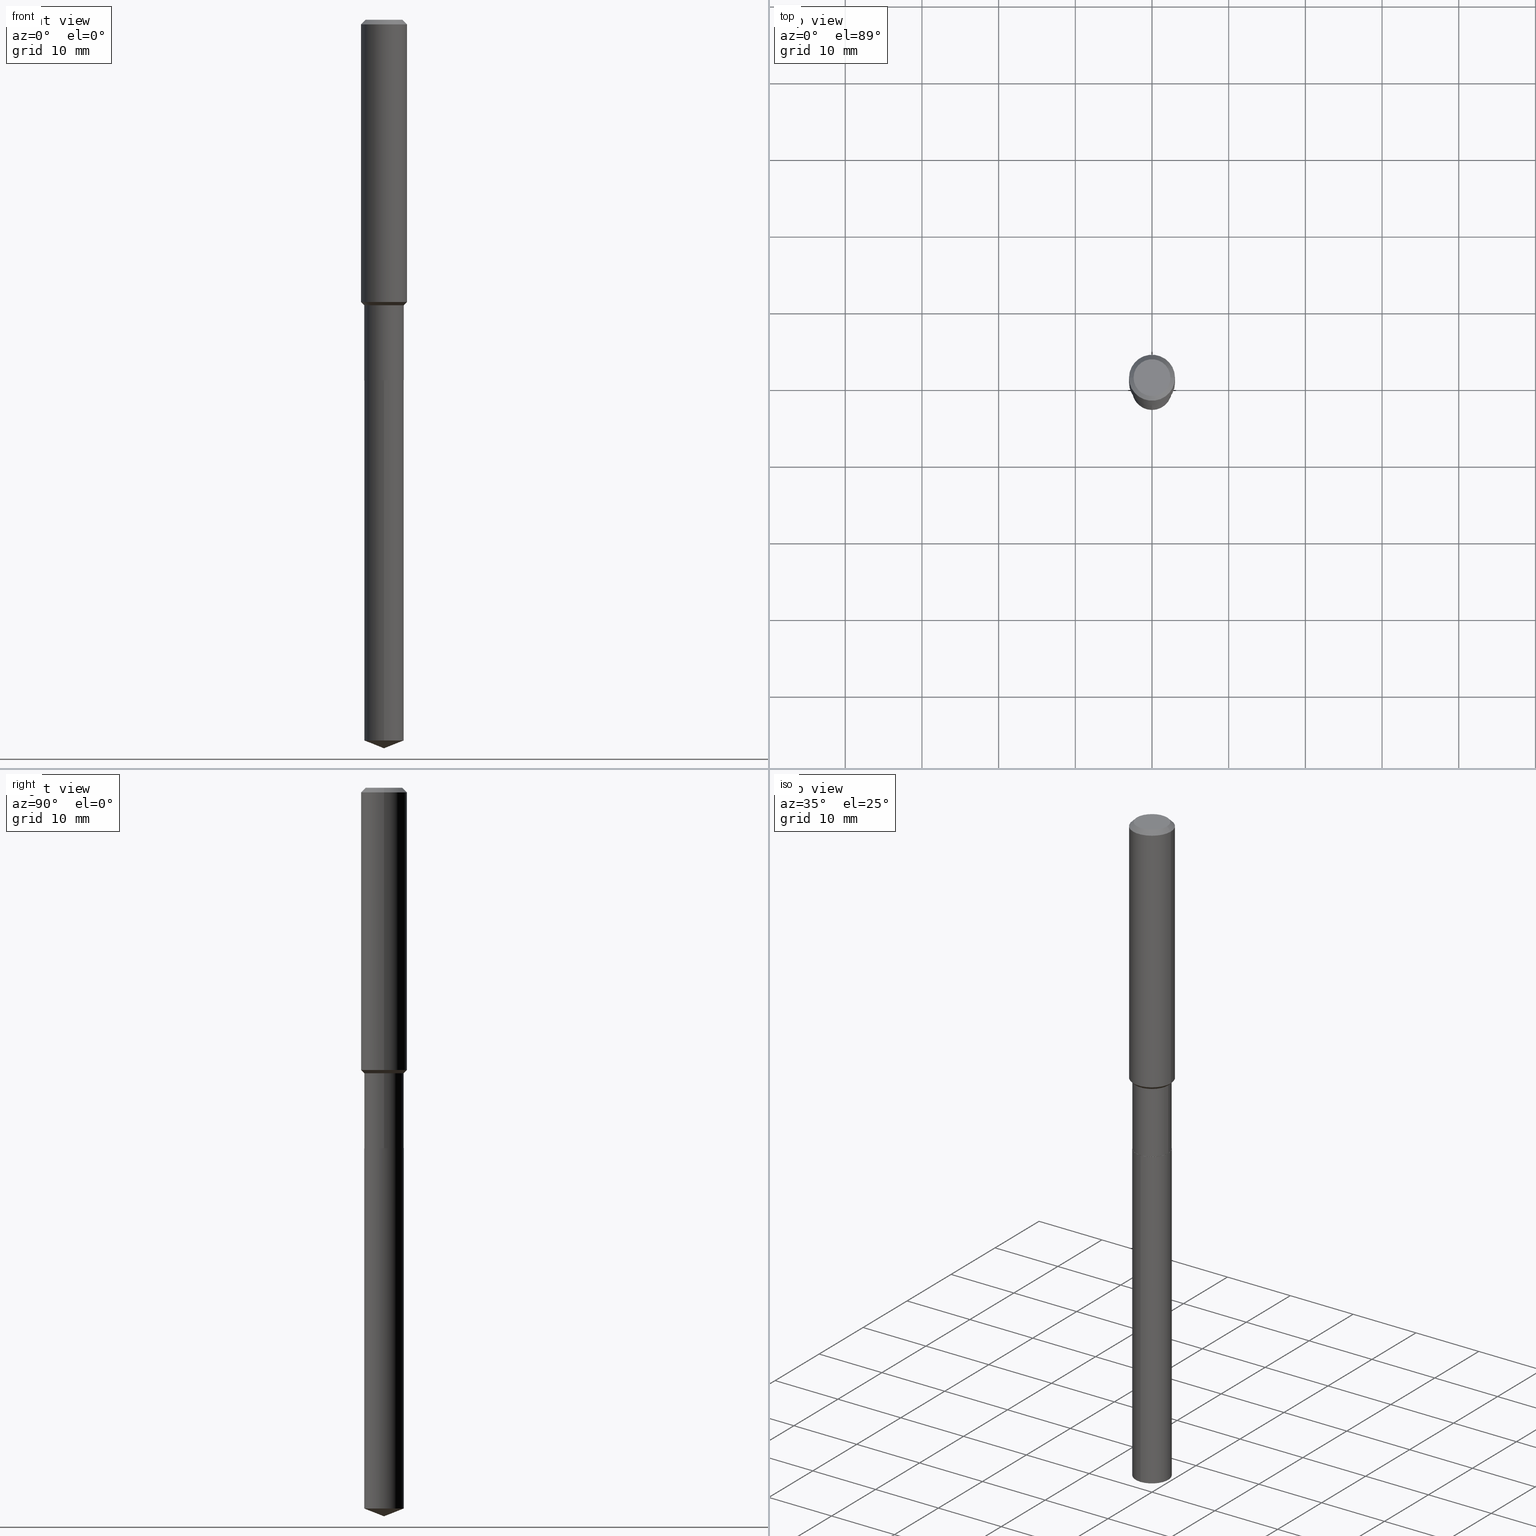
[diagram: canonical four-view strip — front | top / right | iso, engineering-drawing reading convention]
A machine part, canonical four-view strip (front | top / right | iso — engineering-drawing reading convention). The complete STEP part file that produces these views, byte-faithful:
ISO-10303-21;
HEADER;
FILE_DESCRIPTION (( 'STEP AP203' ),
    '1' );
FILE_NAME ('56479.STEP',
    '2024-04-24T18:12:28',
    ( '' ),
    ( '' ),
    'SwSTEP 2.0',
    'SolidWorks 2023',
    '' );
FILE_SCHEMA (( 'CONFIG_CONTROL_DESIGN' ));
ENDSEC;

DATA;
#1 = DIRECTION ( 'NONE',  ( -2.445468806185136597E-29, 3.491481338843145583E-15, 1.000000000000000000 ) ) ;
#2 = ORIENTED_EDGE ( 'NONE', *, *, #412, .F. ) ;
#3 = LINE ( 'NONE', #83, #339 ) ;
#4 = EDGE_LOOP ( 'NONE', ( #161, #128 ) ) ;
#5 = CONICAL_SURFACE ( 'NONE', #86, 0.1010500000000000009, 0.7853981633972606513 ) ;
#6 = LOCAL_TIME ( 14, 12, 28.00000000000000000, #180 ) ;
#7 = CARTESIAN_POINT ( 'NONE',  ( -0.1010500000000000009, -5.739984407735665328E-15, -1.850400000000000489 ) ) ;
#8 = ORIENTED_EDGE ( 'NONE', *, *, #420, .T. ) ;
#9 = AXIS2_PLACEMENT_3D ( 'NONE', #483, #145, #448 ) ;
#10 = AXIS2_PLACEMENT_3D ( 'NONE', #221, #374, #31 ) ;
#11 = CARTESIAN_POINT ( 'NONE',  ( -8.712656782495351602E-28, 1.244084879594921734E-13, 35.62987874015747991 ) ) ;
#12 = ADVANCED_FACE ( 'NONE', ( #168 ), #27, .F. ) ;
#13 = ORIENTED_EDGE ( 'NONE', *, *, #198, .T. ) ;
#14 = CONICAL_SURFACE ( 'NONE', #46, 0.1010500000000000009, 0.7853981633972606513 ) ;
#15 = DIRECTION ( 'NONE',  ( 1.000000000000000000, -6.982962677686269077E-15, 0.000000000000000000 ) ) ;
#16 = EDGE_LOOP ( 'NONE', ( #315, #117, #436, #88 ) ) ;
#17 = AXIS2_PLACEMENT_3D ( 'NONE', #149, #109, #264 ) ;
#18 = LOCAL_TIME ( 14, 12, 28.00000000000000000, #215 ) ;
#19 = LINE ( 'NONE', #127, #143 ) ;
#20 = FACE_OUTER_BOUND ( 'NONE', #125, .T. ) ;
#21 = CC_DESIGN_PERSON_AND_ORGANIZATION_ASSIGNMENT ( #64, #146, ( #411 ) ) ;
#22 = DIRECTION ( 'NONE',  ( -6.982962677686266711E-15, -1.000000000000000000, 5.380301316916323039E-15 ) ) ;
#23 = PLANE ( 'NONE',  #403 ) ;
#24 = VERTEX_POINT ( 'NONE', #255 ) ;
#25 = VECTOR ( 'NONE', #353, 39.37007874015748143 ) ;
#26 = DIRECTION ( 'NONE',  ( -2.445330354646487299E-29, 3.491679609326663871E-15, 1.000000000000000000 ) ) ;
#27 = PLANE ( 'NONE',  #66 ) ;
#28 = DIRECTION ( 'NONE',  ( -2.445330354646487299E-29, 3.491679609326663871E-15, 1.000000000000000000 ) ) ;
#29 = DIRECTION ( 'NONE',  ( -2.445468806185136597E-29, 3.491481338843145583E-15, 1.000000000000000000 ) ) ;
#30 = PERSON_AND_ORGANIZATION_ROLE ( 'creator' ) ;
#31 = DIRECTION ( 'NONE',  ( 1.000000000000000000, -6.982962677686266711E-15, 4.876176775795936353E-29 ) ) ;
#32 = LINE ( 'NONE', #416, #479 ) ;
#33 = EDGE_CURVE ( 'NONE', #275, #330, #365, .T. ) ;
#34 = DIRECTION ( 'NONE',  ( -2.445468806185136597E-29, 3.491481338843145583E-15, 1.000000000000000000 ) ) ;
#35 = CARTESIAN_POINT ( 'NONE',  ( 3.584079082344936633E-29, -5.117115050208514787E-15, -1.465600000000000236 ) ) ;
#36 = CARTESIAN_POINT ( 'NONE',  ( 0.1015499999999999597, -5.826234910127555569E-15, -1.465600000000000236 ) ) ;
#37 = CIRCLE ( 'NONE', #115, 0.1010500000000000009 ) ;
#38 = FACE_OUTER_BOUND ( 'NONE', #102, .T. ) ;
#39 = VERTEX_POINT ( 'NONE', #216 ) ;
#40 = ADVANCED_FACE ( 'NONE', ( #20 ), #438, .T. ) ;
#41 = DATE_AND_TIME ( #337, #267 ) ;
#42 = DIRECTION ( 'NONE',  ( 1.000000000000000000, -6.982962677686266711E-15, 0.000000000000000000 ) ) ;
#43 = ORIENTED_EDGE ( 'NONE', *, *, #376, .T. ) ;
#44 = PERSON_AND_ORGANIZATION ( #405, #156 ) ;
#45 = ADVANCED_FACE ( 'NONE', ( #371 ), #402, .T. ) ;
#46 = AXIS2_PLACEMENT_3D ( 'NONE', #262, #419, #74 ) ;
#47 = DIRECTION ( 'NONE',  ( -2.445330354646487299E-29, 3.491679609326663871E-15, 1.000000000000000000 ) ) ;
#48 = ORIENTED_EDGE ( 'NONE', *, *, #110, .F. ) ;
#49 = EDGE_CURVE ( 'NONE', #439, #81, #54, .T. ) ;
#50 = DIRECTION ( 'NONE',  ( 6.982962677686265922E-15, 1.000000000000000000, -3.491679609326664266E-15 ) ) ;
#51 = VERTEX_POINT ( 'NONE', #211 ) ;
#52 = CARTESIAN_POINT ( 'NONE',  ( 4.525095478964977394E-29, -6.460637069395357576E-15, -1.850400000000000267 ) ) ;
#53 = PERSON_AND_ORGANIZATION ( #405, #156 ) ;
#54 = LINE ( 'NONE', #208, #384 ) ;
#55 = ADVANCED_FACE ( 'NONE', ( #364 ), #23, .F. ) ;
#56 =( GEOMETRIC_REPRESENTATION_CONTEXT ( 3 ) GLOBAL_UNCERTAINTY_ASSIGNED_CONTEXT ( ( #387 ) ) GLOBAL_UNIT_ASSIGNED_CONTEXT ( ( #254, #435, #326 ) ) REPRESENTATION_CONTEXT ( 'NONE', 'WORKASPACE' ) );
#57 = CARTESIAN_POINT ( 'NONE',  ( -0.1015499999999999597, -4.395558902044134419E-15, -1.465600000000000236 ) ) ;
#58 = ORIENTED_EDGE ( 'NONE', *, *, #467, .T. ) ;
#59 = DIRECTION ( 'NONE',  ( 1.000000000000000000, -6.982962677686267499E-15, 0.000000000000000000 ) ) ;
#60 = CARTESIAN_POINT ( 'NONE',  ( 3.543606573602572639E-29, -5.059331034050661047E-15, -1.449050000000000171 ) ) ;
#61 = ORIENTED_EDGE ( 'NONE', *, *, #82, .F. ) ;
#62 = APPROVAL ( #189, 'UNSPECIFIED' ) ;
#63 = DIRECTION ( 'NONE',  ( 1.000000000000000000, -6.982962677686266711E-15, 0.000000000000000000 ) ) ;
#64 = PERSON_AND_ORGANIZATION ( #405, #156 ) ;
#65 = LINE ( 'NONE', #72, #414 ) ;
#66 = AXIS2_PLACEMENT_3D ( 'NONE', #289, #443, #100 ) ;
#67 = VECTOR ( 'NONE', #183, 39.37007874015748143 ) ;
#68 = APPROVAL_STATUS ( 'not_yet_approved' ) ;
#69 = CARTESIAN_POINT ( 'NONE',  ( -7.091198599189951267E-16, -0.1015500000000064545, -1.850400000000000045 ) ) ;
#70 = VECTOR ( 'NONE', #163, 39.37007874015748143 ) ;
#71 = CYLINDRICAL_SURFACE ( 'NONE', #10, 0.1181000000000000799 ) ;
#72 = CARTESIAN_POINT ( 'NONE',  ( 0.1181000000000000799, -8.246878922347486570E-16, 5.758764772215004644E-30 ) ) ;
#73 = EDGE_CURVE ( 'NONE', #191, #427, #217, .T. ) ;
#74 = DIRECTION ( 'NONE',  ( 1.000000000000000000, -6.982962677686269077E-15, 0.000000000000000000 ) ) ;
#75 = CARTESIAN_POINT ( 'NONE',  ( 0.000000000000000000, 0.000000000000000000, 0.000000000000000000 ) ) ;
#76 = AXIS2_PLACEMENT_3D ( 'NONE', #265, #313, #50 ) ;
#77 = ADVANCED_FACE ( 'NONE', ( #338 ), #71, .T. ) ;
#78 = LINE ( 'NONE', #158, #126 ) ;
#79 = ORIENTED_EDGE ( 'NONE', *, *, #333, .F. ) ;
#80 = DIRECTION ( 'NONE',  ( -2.445468806185136597E-29, 3.491481338843145583E-15, 1.000000000000000000 ) ) ;
#81 = VERTEX_POINT ( 'NONE', #178 ) ;
#82 = EDGE_CURVE ( 'NONE', #463, #439, #341, .T. ) ;
#83 = CARTESIAN_POINT ( 'NONE',  ( 9.146541466883561423E-29, -1.305884631539818411E-14, -3.740200000000000191 ) ) ;
#84 = ADVANCED_BREP_SHAPE_REPRESENTATION ( '56479', ( #451, #113, #309 ), #56 ) ;
#85 = ORIENTED_EDGE ( 'NONE', *, *, #162, .F. ) ;
#86 = AXIS2_PLACEMENT_3D ( 'NONE', #464, #271, #229 ) ;
#87 = DIRECTION ( 'NONE',  ( 1.000000000000000000, -6.982962677686266711E-15, 4.876176775795935793E-29 ) ) ;
#88 = ORIENTED_EDGE ( 'NONE', *, *, #426, .F. ) ;
#89 = AXIS2_PLACEMENT_3D ( 'NONE', #401, #29, #177 ) ;
#90 = AXIS2_PLACEMENT_3D ( 'NONE', #301, #413, #299 ) ;
#91 = APPLICATION_PROTOCOL_DEFINITION ( 'international standard', 'config_control_design', 1994, #238 ) ;
#92 = ORIENTED_EDGE ( 'NONE', *, *, #198, .F. ) ;
#93 = DIRECTION ( 'NONE',  ( -2.445330354646487579E-29, 3.491679609326664266E-15, 1.000000000000000000 ) ) ;
#94 = DIRECTION ( 'NONE',  ( -2.445330354646487299E-29, 3.491679609326663871E-15, 1.000000000000000000 ) ) ;
#95 = DIRECTION ( 'NONE',  ( -2.438088387897960049E-29, 3.491481338843145188E-15, 1.000000000000000000 ) ) ;
#96 = PERSON_AND_ORGANIZATION ( #405, #156 ) ;
#97 = ORIENTED_EDGE ( 'NONE', *, *, #219, .T. ) ;
#98 = EDGE_CURVE ( 'NONE', #439, #463, #288, .T. ) ;
#99 = CARTESIAN_POINT ( 'NONE',  ( 9.048463634945760829E-29, -1.291954039331821326E-14, -3.700198391201303227 ) ) ;
#100 = DIRECTION ( 'NONE',  ( -1.000000000000000000, 6.982962677686265922E-15, -4.876176775795935793E-29 ) ) ;
#101 = CONICAL_SURFACE ( 'NONE', #381, 0.1015499999999999597, 0.7853981633974509435 ) ;
#102 = EDGE_LOOP ( 'NONE', ( #369, #43, #390 ) ) ;
#103 = CARTESIAN_POINT ( 'NONE',  ( -0.1015499999999999597, -5.066447041302844667E-15, -1.465600000000000236 ) ) ;
#104 = CARTESIAN_POINT ( 'NONE',  ( -0.1181000000000000799, 8.391509709326788873E-16, -5.809262341591047988E-30 ) ) ;
#105 = PRODUCT_DEFINITION_SHAPE ( 'NONE', 'NONE',  #404 ) ;
#106 = AXIS2_PLACEMENT_3D ( 'NONE', #35, #34, #343 ) ;
#107 = LOCAL_TIME ( 14, 12, 28.00000000000000000, #446 ) ;
#108 = DIRECTION ( 'NONE',  ( -1.000000000000000000, 6.982962677686266711E-15, 0.000000000000000000 ) ) ;
#109 = DIRECTION ( 'NONE',  ( -2.445330354646487299E-29, 3.491679609326663871E-15, 1.000000000000000000 ) ) ;
#110 = EDGE_CURVE ( 'NONE', #191, #330, #65, .T. ) ;
#111 = DIRECTION ( 'NONE',  ( -6.982962677686266711E-15, -1.000000000000000000, 2.690150658458161520E-15 ) ) ;
#112 = DESIGN_CONTEXT ( 'detailed design', #263, 'design' ) ;
#113 = MANIFOLD_SOLID_BREP ( 'Body-Move/Copy2[2]', #272 ) ;
#114 = CARTESIAN_POINT ( 'NONE',  ( 0.1010500000000000009, -7.166265447975555351E-15, -1.850400000000000489 ) ) ;
#115 = AXIS2_PLACEMENT_3D ( 'NONE', #268, #311, #15 ) ;
#116 = CIRCLE ( 'NONE', #206, 0.1015500000000000014 ) ;
#117 = ORIENTED_EDGE ( 'NONE', *, *, #380, .T. ) ;
#118 = COORDINATED_UNIVERSAL_TIME_OFFSET ( 5, 0, .BEHIND. ) ;
#119 = CYLINDRICAL_SURFACE ( 'NONE', #196, 0.1015499999999999736 ) ;
#120 = EDGE_CURVE ( 'NONE', #269, #463, #32, .T. ) ;
#121 = ORIENTED_EDGE ( 'NONE', *, *, #73, .F. ) ;
#122 = FACE_OUTER_BOUND ( 'NONE', #212, .T. ) ;
#123 = VERTEX_POINT ( 'NONE', #257 ) ;
#124 = DIRECTION ( 'NONE',  ( -6.982962677686265133E-15, -1.000000000000000000, 3.498627837350004222E-15 ) ) ;
#125 = EDGE_LOOP ( 'NONE', ( #139, #13, #307, #253 ) ) ;
#126 = VECTOR ( 'NONE', #462, 39.37007874015748143 ) ;
#127 = CARTESIAN_POINT ( 'NONE',  ( 7.215561481644269108E-16, 0.1015499999999935482, -1.850400000000000489 ) ) ;
#128 = ORIENTED_EDGE ( 'NONE', *, *, #138, .F. ) ;
#129 = CIRCLE ( 'NONE', #90, 0.1010500000000000009 ) ;
#130 = DIRECTION ( 'NONE',  ( -2.445468806185136597E-29, 3.491481338843145583E-15, 1.000000000000000000 ) ) ;
#131 = ORIENTED_EDGE ( 'NONE', *, *, #73, .T. ) ;
#132 = CARTESIAN_POINT ( 'NONE',  ( 6.603013411620882309E-46, -9.427353171913646324E-32, -2.700101262760083747E-17 ) ) ;
#133 = ORIENTED_EDGE ( 'NONE', *, *, #203, .T. ) ;
#134 = CIRCLE ( 'NONE', #186, 0.1015499999999999597 ) ;
#135 = CC_DESIGN_APPROVAL ( #466, ( #361 ) ) ;
#136 = DIRECTION ( 'NONE',  ( 1.000000000000000000, 0.000000000000000000, 0.000000000000000000 ) ) ;
#137 = EDGE_LOOP ( 'NONE', ( #286, #327, #470, #431 ) ) ;
#138 = EDGE_CURVE ( 'NONE', #269, #358, #129, .T. ) ;
#139 = ORIENTED_EDGE ( 'NONE', *, *, #485, .F. ) ;
#140 = SHAPE_DEFINITION_REPRESENTATION ( #105, #84 ) ;
#141 = ORIENTED_EDGE ( 'NONE', *, *, #453, .T. ) ;
#142 = ADVANCED_FACE ( 'NONE', ( #421 ), #415, .T. ) ;
#143 = VECTOR ( 'NONE', #93, 39.37007874015748143 ) ;
#144 = DATE_AND_TIME ( #305, #107 ) ;
#145 = DIRECTION ( 'NONE',  ( -2.445468806185136597E-29, 3.491481338843145583E-15, 1.000000000000000000 ) ) ;
#146 = PERSON_AND_ORGANIZATION_ROLE ( 'design_supplier' ) ;
#147 = DIRECTION ( 'NONE',  ( 1.000000000000000000, -6.982962677686267499E-15, 0.000000000000000000 ) ) ;
#148 = DIRECTION ( 'NONE',  ( -2.445468806185136877E-29, 3.491481338843145188E-15, 1.000000000000000000 ) ) ;
#149 = CARTESIAN_POINT ( 'NONE',  ( 4.525095478964977394E-29, -6.460637069395357576E-15, -1.850400000000000267 ) ) ;
#150 = CC_DESIGN_PERSON_AND_ORGANIZATION_ASSIGNMENT ( #96, #252, ( #182 ) ) ;
#151 = CARTESIAN_POINT ( 'NONE',  ( 5.776197320209327532E-31, -8.246878922347559293E-17, -0.02362000000000014088 ) ) ;
#152 = CALENDAR_DATE ( 2024, 24, 4 ) ;
#153 = CARTESIAN_POINT ( 'NONE',  ( -0.1180999999999999966, -1.731748940704388872E-15, -0.02362000000000014088 ) ) ;
#154 = EDGE_LOOP ( 'NONE', ( #157, #240 ) ) ;
#155 = CARTESIAN_POINT ( 'NONE',  ( 3.584079082344936633E-29, -5.117115050208514787E-15, -1.465600000000000236 ) ) ;
#156 = ORGANIZATION ( 'UNSPECIFIED', 'UNSPECIFIED', '' ) ;
#157 = ORIENTED_EDGE ( 'NONE', *, *, #473, .T. ) ;
#158 = CARTESIAN_POINT ( 'NONE',  ( -0.1180999999999999966, 7.422191030112725094E-16, -0.02362000000000014088 ) ) ;
#159 = ORIENTED_EDGE ( 'NONE', *, *, #98, .F. ) ;
#160 = FACE_OUTER_BOUND ( 'NONE', #137, .T. ) ;
#161 = ORIENTED_EDGE ( 'NONE', *, *, #420, .F. ) ;
#162 = EDGE_CURVE ( 'NONE', #324, #24, #372, .T. ) ;
#163 = DIRECTION ( 'NONE',  ( -2.445468806185136877E-29, 3.491481338843145188E-15, 1.000000000000000000 ) ) ;
#164 = ORIENTED_EDGE ( 'NONE', *, *, #33, .F. ) ;
#165 = VECTOR ( 'NONE', #471, 39.37007874015748143 ) ;
#166 = PERSON_AND_ORGANIZATION ( #405, #156 ) ;
#167 = CARTESIAN_POINT ( 'NONE',  ( 4.525095478964977394E-29, -6.460637069395357576E-15, -1.850400000000000267 ) ) ;
#168 = FACE_OUTER_BOUND ( 'NONE', #154, .T. ) ;
#169 = ADVANCED_FACE ( 'NONE', ( #454 ), #14, .T. ) ;
#170 = DIRECTION ( 'NONE',  ( 0.000000000000000000, 0.000000000000000000, 1.000000000000000000 ) ) ;
#171 = VERTEX_POINT ( 'NONE', #103 ) ;
#172 = AXIS2_PLACEMENT_3D ( 'NONE', #11, #47, #124 ) ;
#173 = DIRECTION ( 'NONE',  ( 1.000000000000000000, -6.982962677686267499E-15, 4.875432709231658792E-29 ) ) ;
#174 = ORIENTED_EDGE ( 'NONE', *, *, #236, .F. ) ;
#175 = CLOSED_SHELL ( 'NONE', ( #230, #378, #447, #40, #352 ) ) ;
#176 = DATE_AND_TIME ( #370, #18 ) ;
#177 = DIRECTION ( 'NONE',  ( 1.000000000000000000, -6.982962677686266711E-15, 4.876176775795936353E-29 ) ) ;
#178 = CARTESIAN_POINT ( 'NONE',  ( 0.1015499999999999597, -5.826234910127555569E-15, -1.465600000000000236 ) ) ;
#179 = CIRCLE ( 'NONE', #300, 0.09447999999999998066 ) ;
#180 = COORDINATED_UNIVERSAL_TIME_OFFSET ( 5, 0, .BEHIND. ) ;
#181 = DIRECTION ( 'NONE',  ( -2.445468806185136597E-29, 3.491481338843145583E-15, 1.000000000000000000 ) ) ;
#182 = PRODUCT ( '56479', '56479', '', ( #210 ) ) ;
#183 = DIRECTION ( 'NONE',  ( -2.445330354646487579E-29, 3.491679609326664266E-15, 1.000000000000000000 ) ) ;
#184 = ADVANCED_FACE ( 'NONE', ( #227 ), #213, .T. ) ;
#185 = DIRECTION ( 'NONE',  ( 2.445468806185136597E-29, -3.491481338843145583E-15, -1.000000000000000000 ) ) ;
#186 = AXIS2_PLACEMENT_3D ( 'NONE', #155, #237, #199 ) ;
#187 = CC_DESIGN_APPROVAL ( #62, ( #411 ) ) ;
#188 = DIRECTION ( 'NONE',  ( -2.445330354646487299E-29, 3.491679609326663871E-15, 1.000000000000000000 ) ) ;
#189 = APPROVAL_STATUS ( 'not_yet_approved' ) ;
#190 = CARTESIAN_POINT ( 'NONE',  ( -7.091198599189497672E-16, -0.1015500000000129216, -3.700198391201302783 ) ) ;
#191 = VERTEX_POINT ( 'NONE', #484 ) ;
#192 = PRODUCT_RELATED_PRODUCT_CATEGORY ( 'detail', '', ( #182 ) ) ;
#193 = PLANE ( 'NONE',  #76 ) ;
#194 = ORIENTED_EDGE ( 'NONE', *, *, #334, .T. ) ;
#195 = CARTESIAN_POINT ( 'NONE',  ( 0.000000000000000000, 0.000000000000000000, 0.000000000000000000 ) ) ;
#196 = AXIS2_PLACEMENT_3D ( 'NONE', #75, #389, #87 ) ;
#197 = EDGE_LOOP ( 'NONE', ( #97, #321, #121, #174 ) ) ;
#198 = EDGE_CURVE ( 'NONE', #202, #324, #391, .T. ) ;
#199 = DIRECTION ( 'NONE',  ( 1.000000000000000000, -6.982962677686267499E-15, 0.000000000000000000 ) ) ;
#200 = ORIENTED_EDGE ( 'NONE', *, *, #209, .F. ) ;
#201 = DIRECTION ( 'NONE',  ( -2.445330354646487299E-29, 3.491679609326663871E-15, 1.000000000000000000 ) ) ;
#202 = VERTEX_POINT ( 'NONE', #375 ) ;
#203 = EDGE_CURVE ( 'NONE', #427, #275, #226, .T. ) ;
#204 = DIRECTION ( 'NONE',  ( -2.445468806185136597E-29, 3.491481338843145583E-15, 1.000000000000000000 ) ) ;
#205 = EDGE_LOOP ( 'NONE', ( #350, #141, #92 ) ) ;
#206 = AXIS2_PLACEMENT_3D ( 'NONE', #99, #28, #22 ) ;
#207 = LOCAL_TIME ( 14, 12, 28.00000000000000000, #118 ) ;
#208 = CARTESIAN_POINT ( 'NONE',  ( 0.1015499999999999736, -7.091198599190401904E-16, 4.951757515820771671E-30 ) ) ;
#209 = EDGE_CURVE ( 'NONE', #51, #330, #417, .T. ) ;
#210 = MECHANICAL_CONTEXT ( 'NONE', #238, 'mechanical' ) ;
#211 = CARTESIAN_POINT ( 'NONE',  ( 0.09447999999999998066, -7.704367267948738690E-16, -2.700101262759583929E-17 ) ) ;
#212 = EDGE_LOOP ( 'NONE', ( #481, #235, #393, #281 ) ) ;
#213 = CONICAL_SURFACE ( 'NONE', #488, 0.1015499999999999597, 0.7853981633974509435 ) ;
#214 = CC_DESIGN_SECURITY_CLASSIFICATION ( #361, ( #411 ) ) ;
#215 = COORDINATED_UNIVERSAL_TIME_OFFSET ( 5, 0, .BEHIND. ) ;
#216 = CARTESIAN_POINT ( 'NONE',  ( 7.215561481644725661E-16, 0.1015499999999935482, -1.850400000000000489 ) ) ;
#217 = CIRCLE ( 'NONE', #282, 0.1181000000000001632 ) ;
#218 = CARTESIAN_POINT ( 'NONE',  ( 5.776197320209327532E-31, -8.246878922347559293E-17, -0.02362000000000014088 ) ) ;
#219 = EDGE_CURVE ( 'NONE', #81, #171, #278, .T. ) ;
#220 = APPROVAL_ROLE ( '' ) ;
#221 = CARTESIAN_POINT ( 'NONE',  ( 0.000000000000000000, 0.000000000000000000, 0.000000000000000000 ) ) ;
#222 = AXIS2_PLACEMENT_3D ( 'NONE', #151, #306, #347 ) ;
#223 = APPROVAL_PERSON_ORGANIZATION ( #166, #225, #368 ) ;
#224 = CARTESIAN_POINT ( 'NONE',  ( 0.1180999999999999966, -8.926936027602933910E-16, -0.02362000000000014088 ) ) ;
#225 = APPROVAL ( #408, 'UNSPECIFIED' ) ;
#226 = LINE ( 'NONE', #104, #452 ) ;
#227 = FACE_OUTER_BOUND ( 'NONE', #197, .T. ) ;
#228 = AXIS2_PLACEMENT_3D ( 'NONE', #132, #204, #173 ) ;
#229 = DIRECTION ( 'NONE',  ( 1.000000000000000000, -6.982962677686269077E-15, 0.000000000000000000 ) ) ;
#230 = ADVANCED_FACE ( 'NONE', ( #342 ), #487, .T. ) ;
#231 = FACE_OUTER_BOUND ( 'NONE', #348, .T. ) ;
#232 = EDGE_LOOP ( 'NONE', ( #8, #287, #159, #445 ) ) ;
#233 = DATE_TIME_ROLE ( 'creation_date' ) ;
#234 = DIRECTION ( 'NONE',  ( 1.000000000000000000, -6.982962677686266711E-15, 4.876176775795935793E-29 ) ) ;
#235 = ORIENTED_EDGE ( 'NONE', *, *, #314, .T. ) ;
#236 = EDGE_CURVE ( 'NONE', #81, #191, #379, .T. ) ;
#237 = DIRECTION ( 'NONE',  ( -2.445468806185136597E-29, 3.491481338843145583E-15, 1.000000000000000000 ) ) ;
#238 = APPLICATION_CONTEXT ( 'configuration controlled 3d designs of mechanical parts and assemblies' ) ;
#239 = VECTOR ( 'NONE', #344, 39.37007874015748143 ) ;
#240 = ORIENTED_EDGE ( 'NONE', *, *, #333, .T. ) ;
#241 = CC_DESIGN_DATE_AND_TIME_ASSIGNMENT ( #144, #270, ( #361 ) ) ;
#242 = CARTESIAN_POINT ( 'NONE',  ( 9.146024592448792110E-29, -1.305958007480358851E-14, -3.740200000000000191 ) ) ;
#243 = EDGE_LOOP ( 'NONE', ( #200, #332, #396, #245 ) ) ;
#244 = CARTESIAN_POINT ( 'NONE',  ( 3.584079082344936633E-29, -5.117115050208514787E-15, -1.465600000000000236 ) ) ;
#245 = ORIENTED_EDGE ( 'NONE', *, *, #33, .T. ) ;
#246 = CARTESIAN_POINT ( 'NONE',  ( 9.146024592448792110E-29, -1.305958007480358851E-14, -3.740200000000000191 ) ) ;
#247 = CONICAL_SURFACE ( 'NONE', #222, 0.1180999999999999966, 0.7853981633974461696 ) ;
#248 = DIRECTION ( 'NONE',  ( -6.982962677686266711E-15, -1.000000000000000000, 2.690150658458161520E-15 ) ) ;
#249 = ADVANCED_FACE ( 'NONE', ( #489 ), #247, .T. ) ;
#250 = DIRECTION ( 'NONE',  ( -6.497071151882120625E-15, -0.9304175679820246847, 0.3665012267242971356 ) ) ;
#251 = DIRECTION ( 'NONE',  ( 1.000000000000000000, -6.982962677686265922E-15, 4.876176775795935793E-29 ) ) ;
#252 = PERSON_AND_ORGANIZATION_ROLE ( 'design_owner' ) ;
#253 = ORIENTED_EDGE ( 'NONE', *, *, #334, .F. ) ;
#254 =( CONVERSION_BASED_UNIT ( 'INCH', #280 ) LENGTH_UNIT ( ) NAMED_UNIT ( #422 ) );
#255 = CARTESIAN_POINT ( 'NONE',  ( -7.091198599189951267E-16, -0.1015500000000064545, -1.850400000000000045 ) ) ;
#256 = CIRCLE ( 'NONE', #285, 0.1015500000000000014 ) ;
#257 = CARTESIAN_POINT ( 'NONE',  ( -0.09447999999999998066, 7.009847083995354710E-16, -2.700101262760559836E-17 ) ) ;
#258 = DIRECTION ( 'NONE',  ( 1.000000000000000000, -6.982962677686270655E-15, 0.000000000000000000 ) ) ;
#259 = DIRECTION ( 'NONE',  ( -2.445468806185136877E-29, 3.491481338843145188E-15, 1.000000000000000000 ) ) ;
#260 = CC_DESIGN_PERSON_AND_ORGANIZATION_ASSIGNMENT ( #53, #291, ( #404 ) ) ;
#261 = AXIS2_PLACEMENT_3D ( 'NONE', #425, #80, #461 ) ;
#262 = CARTESIAN_POINT ( 'NONE',  ( 4.525095478964977954E-29, -6.460637069395358365E-15, -1.850400000000000489 ) ) ;
#263 = APPLICATION_CONTEXT ( 'configuration controlled 3d designs of mechanical parts and assemblies' ) ;
#264 = DIRECTION ( 'NONE',  ( -6.982962677686266711E-15, -1.000000000000000000, 2.690150658458161520E-15 ) ) ;
#265 = CARTESIAN_POINT ( 'NONE',  ( 4.525095478964977394E-29, -6.460637069395357576E-15, -1.850400000000000267 ) ) ;
#266 = CALENDAR_DATE ( 2024, 24, 4 ) ;
#267 = LOCAL_TIME ( 14, 12, 28.00000000000000000, #335 ) ;
#268 = CARTESIAN_POINT ( 'NONE',  ( 4.525095478964977954E-29, -6.460637069395358365E-15, -1.850400000000000489 ) ) ;
#269 = VERTEX_POINT ( 'NONE', #7 ) ;
#270 = DATE_TIME_ROLE ( 'classification_date' ) ;
#271 = DIRECTION ( 'NONE',  ( -2.445468806185136597E-29, 3.491481338843145583E-15, 1.000000000000000000 ) ) ;
#272 = CLOSED_SHELL ( 'NONE', ( #367, #249, #77, #184, #373, #302, #440, #45, #142, #12, #55, #169 ) ) ;
#273 = ORIENTED_EDGE ( 'NONE', *, *, #397, .F. ) ;
#274 = DIRECTION ( 'NONE',  ( -2.445330354646487299E-29, 3.491679609326663871E-15, 1.000000000000000000 ) ) ;
#275 = VERTEX_POINT ( 'NONE', #153 ) ;
#276 = CC_DESIGN_DATE_AND_TIME_ASSIGNMENT ( #388, #233, ( #404 ) ) ;
#277 = CYLINDRICAL_SURFACE ( 'NONE', #482, 0.1015499999999999736 ) ;
#278 = CIRCLE ( 'NONE', #106, 0.1015499999999999597 ) ;
#279 = ORIENTED_EDGE ( 'NONE', *, *, #203, .F. ) ;
#280 = LENGTH_MEASURE_WITH_UNIT ( LENGTH_MEASURE( 0.02539999999999999897 ), #323 );
#281 = ORIENTED_EDGE ( 'NONE', *, *, #49, .F. ) ;
#282 = AXIS2_PLACEMENT_3D ( 'NONE', #60, #304, #258 ) ;
#283 = CARTESIAN_POINT ( 'NONE',  ( -0.1181000000000001632, -4.220180063117982061E-15, -1.449050000000000171 ) ) ;
#284 = ORIENTED_EDGE ( 'NONE', *, *, #485, .T. ) ;
#285 = AXIS2_PLACEMENT_3D ( 'NONE', #52, #201, #357 ) ;
#286 = ORIENTED_EDGE ( 'NONE', *, *, #314, .F. ) ;
#287 = ORIENTED_EDGE ( 'NONE', *, *, #120, .T. ) ;
#288 = CIRCLE ( 'NONE', #346, 0.1015499999999999875 ) ;
#289 = CARTESIAN_POINT ( 'NONE',  ( 3.301506705810441154E-46, -4.713676585956823162E-32, -1.350050631380041873E-17 ) ) ;
#290 = EDGE_CURVE ( 'NONE', #358, #439, #423, .T. ) ;
#291 = PERSON_AND_ORGANIZATION_ROLE ( 'creator' ) ;
#292 = EDGE_LOOP ( 'NONE', ( #131, #133, #273, #48 ) ) ;
#293 = CONICAL_SURFACE ( 'NONE', #459, 99.94676754583997536, 1.195550537616119513 ) ;
#294 = CC_DESIGN_APPROVAL ( #225, ( #404 ) ) ;
#295 = PERSON_AND_ORGANIZATION ( #405, #156 ) ;
#296 = DIRECTION ( 'NONE',  ( -0.7071067811864147901, 7.493145998869874533E-15, 0.7071067811866802444 ) ) ;
#297 = CC_DESIGN_PERSON_AND_ORGANIZATION_ASSIGNMENT ( #424, #30, ( #411 ) ) ;
#298 = CARTESIAN_POINT ( 'NONE',  ( 9.048463634945760829E-29, -1.291954039331821326E-14, -3.700198391201303227 ) ) ;
#299 = DIRECTION ( 'NONE',  ( 1.000000000000000000, -6.982962677686269077E-15, 0.000000000000000000 ) ) ;
#300 = AXIS2_PLACEMENT_3D ( 'NONE', #458, #1, #428 ) ;
#301 = CARTESIAN_POINT ( 'NONE',  ( 4.525095478964977954E-29, -6.460637069395358365E-15, -1.850400000000000489 ) ) ;
#302 = ADVANCED_FACE ( 'NONE', ( #160 ), #119, .T. ) ;
#303 = AXIS2_PLACEMENT_3D ( 'NONE', #167, #94, #248 ) ;
#304 = DIRECTION ( 'NONE',  ( -2.445468806185136597E-29, 3.491481338843145583E-15, 1.000000000000000000 ) ) ;
#305 = CALENDAR_DATE ( 2024, 24, 4 ) ;
#306 = DIRECTION ( 'NONE',  ( 2.445468806185136597E-29, -3.491481338843145583E-15, -1.000000000000000000 ) ) ;
#307 = ORIENTED_EDGE ( 'NONE', *, *, #162, .T. ) ;
#308 = DATE_AND_TIME ( #266, #6 ) ;
#309 = AXIS2_PLACEMENT_3D ( 'NONE', #331, #170, #136 ) ;
#310 = APPROVAL_PERSON_ORGANIZATION ( #44, #62, #220 ) ;
#311 = DIRECTION ( 'NONE',  ( -2.445468806185136597E-29, 3.491481338843145583E-15, 1.000000000000000000 ) ) ;
#312 = EDGE_LOOP ( 'NONE', ( #79, #434, #317, #429 ) ) ;
#313 = DIRECTION ( 'NONE',  ( 2.445330354646486458E-29, -3.491679609326664266E-15, -1.000000000000000000 ) ) ;
#314 = EDGE_CURVE ( 'NONE', #463, #171, #392, .T. ) ;
#315 = ORIENTED_EDGE ( 'NONE', *, *, #444, .F. ) ;
#316 = FACE_OUTER_BOUND ( 'NONE', #232, .T. ) ;
#317 = ORIENTED_EDGE ( 'NONE', *, *, #397, .T. ) ;
#318 = CARTESIAN_POINT ( 'NONE',  ( 0.1180999999999999966, -9.071566814582237199E-16, -0.02362000000000014088 ) ) ;
#319 = CIRCLE ( 'NONE', #261, 0.1181000000000001632 ) ;
#320 = APPROVAL_PERSON_ORGANIZATION ( #295, #466, #456 ) ;
#321 = ORIENTED_EDGE ( 'NONE', *, *, #444, .T. ) ;
#322 = EDGE_CURVE ( 'NONE', #123, #275, #78, .T. ) ;
#323 =( LENGTH_UNIT ( ) NAMED_UNIT ( * ) SI_UNIT ( $, .METRE. ) );
#324 = VERTEX_POINT ( 'NONE', #190 ) ;
#325 = AXIS2_PLACEMENT_3D ( 'NONE', #410, #366, #63 ) ;
#326 =( NAMED_UNIT ( * ) SI_UNIT ( $, .STERADIAN. ) SOLID_ANGLE_UNIT ( ) );
#327 = ORIENTED_EDGE ( 'NONE', *, *, #82, .T. ) ;
#328 = CARTESIAN_POINT ( 'NONE',  ( 0.1015499999999999875, -7.168011188644976066E-15, -1.849900000000000322 ) ) ;
#329 = VECTOR ( 'NONE', #250, 39.37007874015747433 ) ;
#330 = VERTEX_POINT ( 'NONE', #318 ) ;
#331 = CARTESIAN_POINT ( 'NONE',  ( 0.000000000000000000, 0.000000000000000000, 0.000000000000000000 ) ) ;
#332 = ORIENTED_EDGE ( 'NONE', *, *, #473, .F. ) ;
#333 = EDGE_CURVE ( 'NONE', #51, #123, #179, .T. ) ;
#334 = EDGE_CURVE ( 'NONE', #39, #24, #400, .T. ) ;
#335 = COORDINATED_UNIVERSAL_TIME_OFFSET ( 5, 0, .BEHIND. ) ;
#336 = DIRECTION ( 'NONE',  ( -2.445468806185136877E-29, 3.491481338843145188E-15, 1.000000000000000000 ) ) ;
#337 = CALENDAR_DATE ( 2024, 24, 4 ) ;
#338 = FACE_OUTER_BOUND ( 'NONE', #292, .T. ) ;
#339 = VECTOR ( 'NONE', #394, 39.37007874015748143 ) ;
#340 = CARTESIAN_POINT ( 'NONE',  ( 3.584079082344936633E-29, -5.117115050208514787E-15, -1.465600000000000236 ) ) ;
#341 = CIRCLE ( 'NONE', #9, 0.1015499999999999875 ) ;
#342 = FACE_OUTER_BOUND ( 'NONE', #354, .T. ) ;
#343 = DIRECTION ( 'NONE',  ( 1.000000000000000000, -6.982962677686267499E-15, 0.000000000000000000 ) ) ;
#344 = DIRECTION ( 'NONE',  ( 0.7071067811865493491, -2.468850131082276388E-15, 0.7071067811865456854 ) ) ;
#345 = PERSON_AND_ORGANIZATION ( #405, #156 ) ;
#346 = AXIS2_PLACEMENT_3D ( 'NONE', #486, #450, #455 ) ;
#347 = DIRECTION ( 'NONE',  ( -1.000000000000000000, 6.982962677686266711E-15, 0.000000000000000000 ) ) ;
#348 = EDGE_LOOP ( 'NONE', ( #472, #194 ) ) ;
#349 = CARTESIAN_POINT ( 'NONE',  ( 4.525095478964977394E-29, -6.460637069395357576E-15, -1.850400000000000267 ) ) ;
#350 = ORIENTED_EDGE ( 'NONE', *, *, #376, .F. ) ;
#351 = AXIS2_PLACEMENT_3D ( 'NONE', #349, #274, #111 ) ;
#352 = ADVANCED_FACE ( 'NONE', ( #231 ), #193, .F. ) ;
#353 = DIRECTION ( 'NONE',  ( 0.7071067811864147901, -2.468850131080866299E-15, 0.7071067811866802444 ) ) ;
#354 = EDGE_LOOP ( 'NONE', ( #58, #284, #2, #85 ) ) ;
#355 = DIRECTION ( 'NONE',  ( -2.445468806185136597E-29, 3.491481338843145583E-15, 1.000000000000000000 ) ) ;
#356 = EDGE_LOOP ( 'NONE', ( #279, #441, #477, #164 ) ) ;
#357 = DIRECTION ( 'NONE',  ( -6.982962677686266711E-15, -1.000000000000000000, 2.690150658458161520E-15 ) ) ;
#358 = VERTEX_POINT ( 'NONE', #114 ) ;
#359 = LINE ( 'NONE', #57, #165 ) ;
#360 = CIRCLE ( 'NONE', #468, 0.1180999999999999966 ) ;
#361 = SECURITY_CLASSIFICATION ( '', '', #490 ) ;
#362 = ORIENTED_EDGE ( 'NONE', *, *, #138, .T. ) ;
#363 = FACE_OUTER_BOUND ( 'NONE', #16, .T. ) ;
#364 = FACE_OUTER_BOUND ( 'NONE', #4, .T. ) ;
#365 = CIRCLE ( 'NONE', #325, 0.1180999999999999966 ) ;
#366 = DIRECTION ( 'NONE',  ( -2.445468806185136597E-29, 3.491481338843145583E-15, 1.000000000000000000 ) ) ;
#367 = ADVANCED_FACE ( 'NONE', ( #316 ), #5, .T. ) ;
#368 = APPROVAL_ROLE ( '' ) ;
#369 = ORIENTED_EDGE ( 'NONE', *, *, #453, .F. ) ;
#370 = CALENDAR_DATE ( 2024, 24, 4 ) ;
#371 = FACE_OUTER_BOUND ( 'NONE', #356, .T. ) ;
#372 = LINE ( 'NONE', #69, #67 ) ;
#373 = ADVANCED_FACE ( 'NONE', ( #122 ), #277, .T. ) ;
#374 = DIRECTION ( 'NONE',  ( -2.445468806185136597E-29, 3.491481338843145583E-15, 1.000000000000000000 ) ) ;
#375 = CARTESIAN_POINT ( 'NONE',  ( 7.215561481644721717E-16, 0.1015499999999870812, -3.700198391201303671 ) ) ;
#376 = EDGE_CURVE ( 'NONE', #407, #202, #3, .T. ) ;
#377 = DIRECTION ( 'NONE',  ( 0.7071067811865460184, -7.319954787623251312E-15, -0.7071067811865490160 ) ) ;
#378 = ADVANCED_FACE ( 'NONE', ( #38 ), #409, .T. ) ;
#379 = LINE ( 'NONE', #36, #239 ) ;
#380 = EDGE_CURVE ( 'NONE', #171, #81, #134, .T. ) ;
#381 = AXIS2_PLACEMENT_3D ( 'NONE', #244, #130, #59 ) ;
#382 = CARTESIAN_POINT ( 'NONE',  ( -0.1015499999999999736, 7.215561481643815513E-16, -4.995178584153855700E-30 ) ) ;
#383 = PERSON_AND_ORGANIZATION_ROLE ( 'classification_officer' ) ;
#384 = VECTOR ( 'NONE', #336, 39.37007874015748143 ) ;
#385 = DIRECTION ( 'NONE',  ( -2.445468806185136597E-29, 3.491481338843145583E-15, 1.000000000000000000 ) ) ;
#386 = ORIENTED_EDGE ( 'NONE', *, *, #290, .T. ) ;
#387 = UNCERTAINTY_MEASURE_WITH_UNIT (LENGTH_MEASURE( 1.000000000000000082E-05 ), #254, 'distance_accuracy_value', 'NONE');
#388 = DATE_AND_TIME ( #152, #207 ) ;
#389 = DIRECTION ( 'NONE',  ( -2.445468806185136597E-29, 3.491481338843145583E-15, 1.000000000000000000 ) ) ;
#390 = ORIENTED_EDGE ( 'NONE', *, *, #467, .F. ) ;
#391 = CIRCLE ( 'NONE', #418, 0.1015500000000000014 ) ;
#392 = LINE ( 'NONE', #382, #70 ) ;
#393 = ORIENTED_EDGE ( 'NONE', *, *, #219, .F. ) ;
#394 = DIRECTION ( 'NONE',  ( 6.611014441532066589E-15, 0.9304175679820272382, 0.3665012267242905297 ) ) ;
#395 = APPROVAL_DATE_TIME ( #176, #225 ) ;
#396 = ORIENTED_EDGE ( 'NONE', *, *, #322, .T. ) ;
#397 = EDGE_CURVE ( 'NONE', #330, #275, #360, .T. ) ;
#398 = CIRCLE ( 'NONE', #228, 0.09447999999999998066 ) ;
#399 = DIRECTION ( 'NONE',  ( -6.982962677686265133E-15, -1.000000000000000000, 3.498627837350004222E-15 ) ) ;
#400 = CIRCLE ( 'NONE', #351, 0.1015500000000000014 ) ;
#401 = CARTESIAN_POINT ( 'NONE',  ( 0.000000000000000000, 0.000000000000000000, 0.000000000000000000 ) ) ;
#402 = CYLINDRICAL_SURFACE ( 'NONE', #89, 0.1181000000000000799 ) ;
#403 = AXIS2_PLACEMENT_3D ( 'NONE', #475, #95, #251 ) ;
#404 = PRODUCT_DEFINITION ( 'UNKNOWN', '', #411, #112 ) ;
#405 = PERSON ( 'UNSPECIFIED', 'UNSPECIFIED', 'UNSPECIFIED', ('UNSPECIFIED'), ('UNSPECIFIED'), ('UNSPECIFIED') ) ;
#406 = APPLICATION_PROTOCOL_DEFINITION ( 'international standard', 'config_control_design', 1994, #263 ) ;
#407 = VERTEX_POINT ( 'NONE', #242 ) ;
#408 = APPROVAL_STATUS ( 'not_yet_approved' ) ;
#409 = CONICAL_SURFACE ( 'NONE', #172, 99.94676754583997536, 1.195550537616119513 ) ;
#410 = CARTESIAN_POINT ( 'NONE',  ( 5.776197320209327532E-31, -8.246878922347559293E-17, -0.02362000000000014088 ) ) ;
#411 = PRODUCT_DEFINITION_FORMATION_WITH_SPECIFIED_SOURCE ( 'ANY', '', #182, .NOT_KNOWN. ) ;
#412 = EDGE_CURVE ( 'NONE', #24, #39, #256, .T. ) ;
#413 = DIRECTION ( 'NONE',  ( -2.445468806185136597E-29, 3.491481338843145583E-15, 1.000000000000000000 ) ) ;
#414 = VECTOR ( 'NONE', #148, 39.37007874015748143 ) ;
#415 = CONICAL_SURFACE ( 'NONE', #437, 0.1180999999999999966, 0.7853981633974461696 ) ;
#416 = CARTESIAN_POINT ( 'NONE',  ( -0.1010500000000000009, -5.742633634909777318E-15, -1.850400000000000489 ) ) ;
#417 = LINE ( 'NONE', #224, #432 ) ;
#418 = AXIS2_PLACEMENT_3D ( 'NONE', #298, #188, #449 ) ;
#419 = DIRECTION ( 'NONE',  ( -2.445468806185136597E-29, 3.491481338843145583E-15, 1.000000000000000000 ) ) ;
#420 = EDGE_CURVE ( 'NONE', #358, #269, #37, .T. ) ;
#421 = FACE_OUTER_BOUND ( 'NONE', #243, .T. ) ;
#422 = DIMENSIONAL_EXPONENTS ( 1.000000000000000000, 0.000000000000000000, 0.000000000000000000, 0.000000000000000000, 0.000000000000000000, 0.000000000000000000, 0.000000000000000000 ) ;
#423 = LINE ( 'NONE', #430, #25 ) ;
#424 = PERSON_AND_ORGANIZATION ( #405, #156 ) ;
#425 = CARTESIAN_POINT ( 'NONE',  ( 3.543606573602572639E-29, -5.059331034050661047E-15, -1.449050000000000171 ) ) ;
#426 = EDGE_CURVE ( 'NONE', #427, #191, #319, .T. ) ;
#427 = VERTEX_POINT ( 'NONE', #283 ) ;
#428 = DIRECTION ( 'NONE',  ( 1.000000000000000000, -6.982962677686267499E-15, 4.875432709231658792E-29 ) ) ;
#429 = ORIENTED_EDGE ( 'NONE', *, *, #322, .F. ) ;
#430 = CARTESIAN_POINT ( 'NONE',  ( 0.1010500000000000009, -7.166265447975555351E-15, -1.850400000000000489 ) ) ;
#431 = ORIENTED_EDGE ( 'NONE', *, *, #380, .F. ) ;
#432 = VECTOR ( 'NONE', #377, 39.37007874015748143 ) ;
#433 = CARTESIAN_POINT ( 'NONE',  ( 5.776197320209327532E-31, -8.246878922347559293E-17, -0.02362000000000014088 ) ) ;
#434 = ORIENTED_EDGE ( 'NONE', *, *, #209, .T. ) ;
#435 =( NAMED_UNIT ( * ) PLANE_ANGLE_UNIT ( ) SI_UNIT ( $, .RADIAN. ) );
#436 = ORIENTED_EDGE ( 'NONE', *, *, #236, .T. ) ;
#437 = AXIS2_PLACEMENT_3D ( 'NONE', #218, #185, #108 ) ;
#438 = CYLINDRICAL_SURFACE ( 'NONE', #303, 0.1015500000000000014 ) ;
#439 = VERTEX_POINT ( 'NONE', #328 ) ;
#440 = ADVANCED_FACE ( 'NONE', ( #363 ), #101, .T. ) ;
#441 = ORIENTED_EDGE ( 'NONE', *, *, #426, .T. ) ;
#442 = CARTESIAN_POINT ( 'NONE',  ( -8.712656782495351602E-28, 1.244084879594921734E-13, 35.62987874015747991 ) ) ;
#443 = DIRECTION ( 'NONE',  ( 2.438088387897960049E-29, -3.491481338843145188E-15, -1.000000000000000000 ) ) ;
#444 = EDGE_CURVE ( 'NONE', #171, #427, #359, .T. ) ;
#445 = ORIENTED_EDGE ( 'NONE', *, *, #290, .F. ) ;
#446 = COORDINATED_UNIVERSAL_TIME_OFFSET ( 5, 0, .BEHIND. ) ;
#447 = ADVANCED_FACE ( 'NONE', ( #476 ), #293, .T. ) ;
#448 = DIRECTION ( 'NONE',  ( 1.000000000000000000, -6.982962677686265922E-15, 0.000000000000000000 ) ) ;
#449 = DIRECTION ( 'NONE',  ( -6.982962677686266711E-15, -1.000000000000000000, 5.380301316916323039E-15 ) ) ;
#450 = DIRECTION ( 'NONE',  ( -2.445468806185136597E-29, 3.491481338843145583E-15, 1.000000000000000000 ) ) ;
#451 = MANIFOLD_SOLID_BREP ( 'Body-Move/Copy2[1]', #175 ) ;
#452 = VECTOR ( 'NONE', #259, 39.37007874015748143 ) ;
#453 = EDGE_CURVE ( 'NONE', #407, #324, #474, .T. ) ;
#454 = FACE_OUTER_BOUND ( 'NONE', #465, .T. ) ;
#455 = DIRECTION ( 'NONE',  ( 1.000000000000000000, -6.982962677686265922E-15, 0.000000000000000000 ) ) ;
#456 = APPROVAL_ROLE ( '' ) ;
#457 = CC_DESIGN_PERSON_AND_ORGANIZATION_ASSIGNMENT ( #345, #383, ( #361 ) ) ;
#458 = CARTESIAN_POINT ( 'NONE',  ( 6.603013411620882309E-46, -9.427353171913646324E-32, -2.700101262760083747E-17 ) ) ;
#459 = AXIS2_PLACEMENT_3D ( 'NONE', #442, #26, #399 ) ;
#460 = APPROVAL_DATE_TIME ( #308, #62 ) ;
#461 = DIRECTION ( 'NONE',  ( 1.000000000000000000, -6.982962677686270655E-15, 0.000000000000000000 ) ) ;
#462 = DIRECTION ( 'NONE',  ( -0.7071067811865460184, 2.468850131082241283E-15, -0.7071067811865490160 ) ) ;
#463 = VERTEX_POINT ( 'NONE', #469 ) ;
#464 = CARTESIAN_POINT ( 'NONE',  ( 4.525095478964977954E-29, -6.460637069395358365E-15, -1.850400000000000489 ) ) ;
#465 = EDGE_LOOP ( 'NONE', ( #478, #362, #386, #61 ) ) ;
#466 = APPROVAL ( #68, 'UNSPECIFIED' ) ;
#467 = EDGE_CURVE ( 'NONE', #324, #202, #116, .T. ) ;
#468 = AXIS2_PLACEMENT_3D ( 'NONE', #433, #385, #42 ) ;
#469 = CARTESIAN_POINT ( 'NONE',  ( -0.1015499999999999875, -5.066447041302844667E-15, -1.849900000000000322 ) ) ;
#470 = ORIENTED_EDGE ( 'NONE', *, *, #49, .T. ) ;
#471 = DIRECTION ( 'NONE',  ( -0.7071067811865493491, 7.493145998870360471E-15, 0.7071067811865456854 ) ) ;
#472 = ORIENTED_EDGE ( 'NONE', *, *, #412, .T. ) ;
#473 = EDGE_CURVE ( 'NONE', #123, #51, #398, .T. ) ;
#474 = LINE ( 'NONE', #246, #329 ) ;
#475 = CARTESIAN_POINT ( 'NONE',  ( 1.031878573310231231E-29, -1.146312249985191851E-14, -1.850400000000000489 ) ) ;
#476 = FACE_OUTER_BOUND ( 'NONE', #205, .T. ) ;
#477 = ORIENTED_EDGE ( 'NONE', *, *, #110, .T. ) ;
#478 = ORIENTED_EDGE ( 'NONE', *, *, #120, .F. ) ;
#479 = VECTOR ( 'NONE', #296, 39.37007874015748143 ) ;
#480 = APPROVAL_DATE_TIME ( #41, #466 ) ;
#481 = ORIENTED_EDGE ( 'NONE', *, *, #98, .T. ) ;
#482 = AXIS2_PLACEMENT_3D ( 'NONE', #195, #355, #234 ) ;
#483 = CARTESIAN_POINT ( 'NONE',  ( 4.523872744561885153E-29, -6.458891328725936072E-15, -1.849900000000000322 ) ) ;
#484 = CARTESIAN_POINT ( 'NONE',  ( 0.1181000000000001632, -5.884018926285410098E-15, -1.449050000000000171 ) ) ;
#485 = EDGE_CURVE ( 'NONE', #202, #39, #19, .T. ) ;
#486 = CARTESIAN_POINT ( 'NONE',  ( 4.523872744561885153E-29, -6.458891328725936072E-15, -1.849900000000000322 ) ) ;
#487 = CYLINDRICAL_SURFACE ( 'NONE', #17, 0.1015500000000000014 ) ;
#488 = AXIS2_PLACEMENT_3D ( 'NONE', #340, #181, #147 ) ;
#489 = FACE_OUTER_BOUND ( 'NONE', #312, .T. ) ;
#490 = SECURITY_CLASSIFICATION_LEVEL ( 'unclassified' ) ;
ENDSEC;
END-ISO-10303-21;
